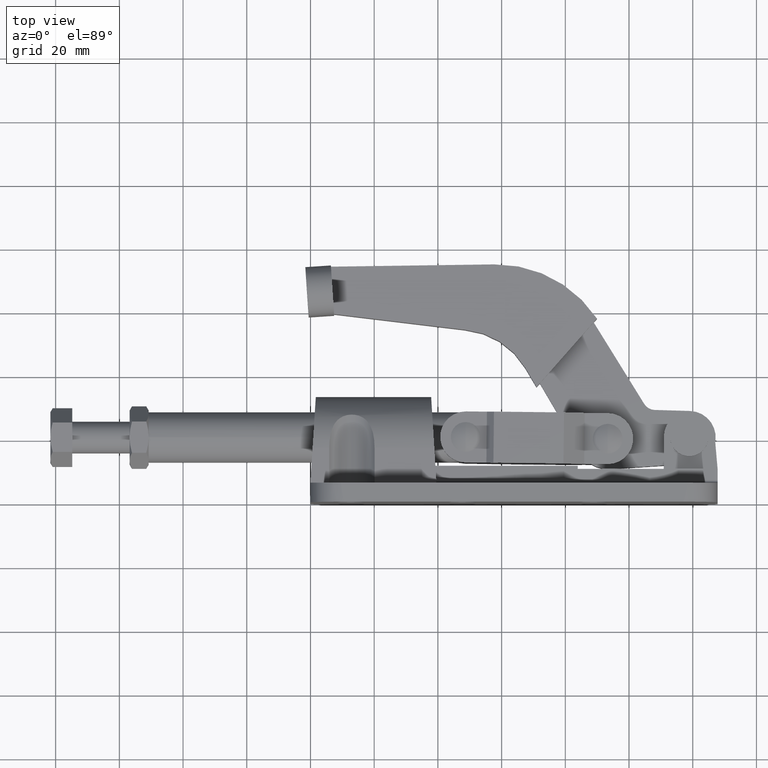
[diagram: clean part render]
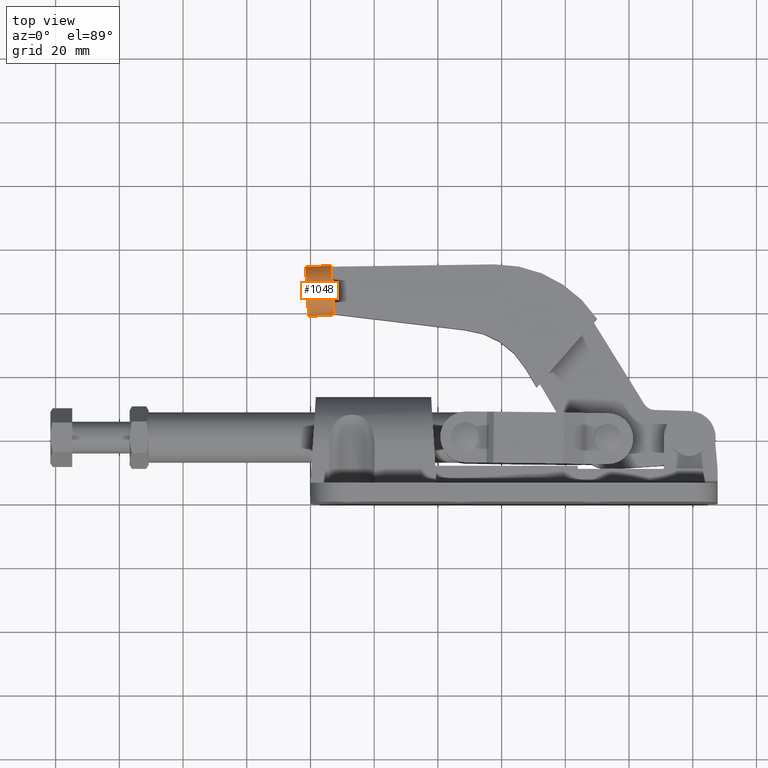
[diagram: same view with one face highlighted and labeled with its STEP entity id]
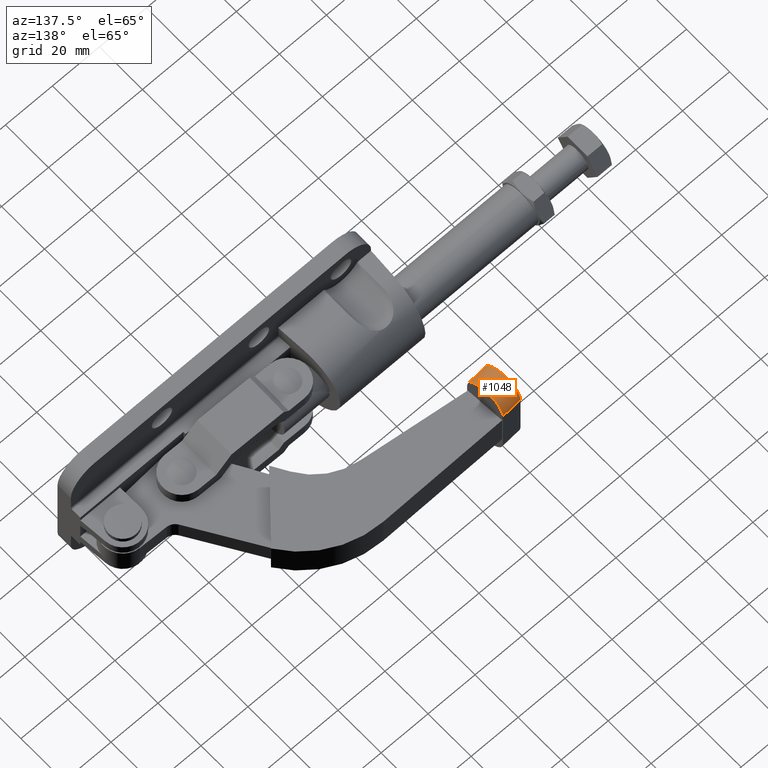
[diagram: same view with one face highlighted and labeled with its STEP entity id]
A machine part, top view. The second image highlights one B-rep face of the part: STEP entity #1048.
A second angle (auxiliary view) of the same face is appended — the face is thin or edge-on in the first view.
In plain terms, the highlighted face is a freeform B-spline surface patch.
Its self-contained STEP definition (entity closure, byte-faithful):
#162 = ORIENTED_EDGE ( 'NONE', *, *, #4937, .T. ) ;
#315 = VERTEX_POINT ( 'NONE', #653 ) ;
#358 = CARTESIAN_POINT ( 'NONE',  ( 7.425464206255657700, 58.99468908533487600, 10.22447901255426600 ) ) ;
#502 = CARTESIAN_POINT ( 'NONE',  ( -1.442688141194595100, 71.77842185881044700, 15.94816563444231200 ) ) ;
#558 = CARTESIAN_POINT ( 'NONE',  ( -0.5838739777306173300, 58.86923935050506900, 13.26859659949975900 ) ) ;
#603 = VECTOR ( 'NONE', #1136, 1000.000000000000000 ) ;
#616 = CARTESIAN_POINT ( 'NONE',  ( 7.425464206255657700, 58.99468908533487600, 10.22447901255426600 ) ) ;
#653 = CARTESIAN_POINT ( 'NONE',  ( 6.396547981574171300, 74.46074436858246800, 10.32662863986430500 ) ) ;
#655 = CARTESIAN_POINT ( 'NONE',  ( 7.425464206255657700, 58.99468908533487600, 10.22447901255426600 ) ) ;
#900 = CARTESIAN_POINT ( 'NONE',  ( -1.269834298771685500, 69.18018594931059800, 17.63992341549715100 ) ) ;
#963 = VERTEX_POINT ( 'NONE', #4226 ) ;
#1048 = ADVANCED_FACE ( 'NONE', ( #2458 ), #5044, .T. ) ;
#1136 = DIRECTION ( 'NONE',  ( -0.9977943721879429800, -0.06638065102173085200, -1.982644829445289500E-017 ) ) ;
#1254 = CARTESIAN_POINT ( 'NONE',  ( -0.8673869506403870700, 63.13083733813309800, 17.56200779297675800 ) ) ;
#1380 = CARTESIAN_POINT ( 'NONE',  ( 7.398480999772943700, 59.40028455867891200, 13.26859659949975900 ) ) ;
#1424 = CARTESIAN_POINT ( 'NONE',  ( -1.269834298771675100, 69.18018594931059800, 17.63992341549715100 ) ) ;
#1667 = CARTESIAN_POINT ( 'NONE',  ( 6.396558950179306500, 74.46057949504918800, 11.33621663687624300 ) ) ;
#1847 = CARTESIAN_POINT ( 'NONE',  ( 7.425453267660476100, 58.99485350777657500, 11.23134427117879700 ) ) ;
#1921 = CARTESIAN_POINT ( 'NONE',  ( 7.114968026863163400, 63.66188254630694800, 17.56200779297675800 ) ) ;
#1971 = CARTESIAN_POINT ( 'NONE',  ( 7.284548835792478800, 61.11284492500732300, 15.83309838733576100 ) ) ;
#2005 = CARTESIAN_POINT ( 'NONE',  ( -0.6978061417110825700, 60.58179971683347300, 15.83309838733576100 ) ) ;
#2021 = CARTESIAN_POINT ( 'NONE',  ( -0.5568907712479032000, 58.46364387716102600, 10.22447901255426600 ) ) ;
#2126 = EDGE_CURVE ( 'NONE', #2898, #6085, #6538, .T. ) ;
#2173 = CARTESIAN_POINT ( 'NONE',  ( 6.712520678731875600, 69.71123115748443400, 17.63992341549715100 ) ) ;
#2250 = EDGE_CURVE ( 'NONE', #6085, #963, #6506, .T. ) ;
#2448 = CARTESIAN_POINT ( 'NONE',  ( 6.712520678731875600, 69.71123115748443400, 17.63992341549715100 ) ) ;
#2458 = FACE_OUTER_BOUND ( 'NONE', #4319, .T. ) ;
#2686 = CARTESIAN_POINT ( 'NONE',  ( 6.396547981574171300, 74.46074436858246800, 10.32662863986430500 ) ) ;
#2819 = CARTESIAN_POINT ( 'NONE',  ( -1.558745752598279100, 73.52293068368270200, 13.37803409431769600 ) ) ;
#2898 = VERTEX_POINT ( 'NONE', #4793 ) ;
#2943 = CARTESIAN_POINT ( 'NONE',  ( -0.5838739777306069000, 58.86923935050506900, 13.26859659949975900 ) ) ;
#2963 = CARTESIAN_POINT ( 'NONE',  ( 6.423609224905272100, 74.05397589185655200, 13.37803409431769600 ) ) ;
#3199 = CARTESIAN_POINT ( 'NONE',  ( -1.067843451908568400, 66.14397995959369300, 18.19854801070423300 ) ) ;
#3360 = CARTESIAN_POINT ( 'NONE',  ( -0.5569017098430751900, 58.46380829960273200, 11.23134427117879700 ) ) ;
#3402 = ORIENTED_EDGE ( 'NONE', *, *, #2250, .F. ) ;
#3409 = CARTESIAN_POINT ( 'NONE',  ( -0.5568907712479032000, 58.46364387716102600, 10.22447901255426600 ) ) ;
#3480 = CARTESIAN_POINT ( 'NONE',  ( 6.396547981574171300, 74.46074436858246800, 10.32662863986430500 ) ) ;
#3822 = CARTESIAN_POINT ( 'NONE',  ( 7.398480999772943700, 59.40028455867891200, 13.26859659949975900 ) ) ;
#3840 = CARTESIAN_POINT ( 'NONE',  ( 6.423609224905272100, 74.05397589185655200, 13.37803409431769600 ) ) ;
#3874 = B_SPLINE_CURVE_WITH_KNOTS ( 'NONE', 3,
 ( #655, #4270, #1380, #5025, #1921, #5551, #2448, #6088, #2963, #6631, #3480 ),
 .UNSPECIFIED., .F., .F.,
 ( 4, 1, 1, 1, 1, 1, 1, 1, 4 ),
 ( -6.189906223444883800E-006, 0.1249953540867011200, 0.2499968980796256900, 0.3749984420725502900, 0.4999999860654748600, 0.6250015300583994200, 0.7500030740513240500, 0.8750046180442485600, 1.000006162037173200 ),
 .UNSPECIFIED. ) ;
#3910 = CARTESIAN_POINT ( 'NONE',  ( -0.5569017098430856200, 58.46380829960273200, 11.23134427117879700 ) ) ;
#4010 = CARTESIAN_POINT ( 'NONE',  ( 6.539666836308965600, 72.30946706698429700, 15.94816563444231200 ) ) ;
#4226 = CARTESIAN_POINT ( 'NONE',  ( -1.585806995929389700, 73.92969916040861700, 10.32662863986430500 ) ) ;
#4270 = CARTESIAN_POINT ( 'NONE',  ( 7.425453267660476100, 58.99485350777657500, 11.23134427117879700 ) ) ;
#4319 = EDGE_LOOP ( 'NONE', ( #162, #3402, #5078, #6544 ) ) ;
#4355 = CARTESIAN_POINT ( 'NONE',  ( -1.442688141194584900, 71.77842185881044700, 15.94816563444231200 ) ) ;
#4467 = CARTESIAN_POINT ( 'NONE',  ( -0.8673869506403975000, 63.13083733813309800, 17.56200779297675800 ) ) ;
#4745 = LINE ( 'NONE', #6399, #603 ) ;
#4779 = VECTOR ( 'NONE', #5347, 1000.000000000000000 ) ;
#4793 = CARTESIAN_POINT ( 'NONE',  ( 7.425464206255657700, 58.99468908533487600, 10.22447901255426600 ) ) ;
#4937 = EDGE_CURVE ( 'NONE', #315, #963, #4745, .T. ) ;
#4940 = CARTESIAN_POINT ( 'NONE',  ( -0.6978061417110721400, 60.58179971683347300, 15.83309838733576100 ) ) ;
#4947 = EDGE_CURVE ( 'NONE', #2898, #315, #3874, .T. ) ;
#4971 = CARTESIAN_POINT ( 'NONE',  ( -1.558745752598289500, 73.52293068368270200, 13.37803409431769600 ) ) ;
#5025 = CARTESIAN_POINT ( 'NONE',  ( 7.284548835792478800, 61.11284492500732300, 15.83309838733576100 ) ) ;
#5044 = B_SPLINE_SURFACE_WITH_KNOTS ( 'NONE', 3, 1, ( 
 ( #358, #6192 ),
 ( #1847, #3360 ),
 ( #3822, #2943 ),
 ( #1971, #4940 ),
 ( #6522, #1254 ),
 ( #5805, #3199 ),
 ( #2173, #1424 ),
 ( #4010, #4355 ),
 ( #3840, #2819 ),
 ( #1667, #6300 ),
 ( #2686, #5294 ) ),
 .UNSPECIFIED., .F., .F., .F.,
 ( 4, 1, 1, 1, 1, 1, 1, 1, 4 ),
 ( 2, 2 ),
 ( -6.189906223444883800E-006, 0.1249953540867011400, 0.2499968980796257200, 0.3749984420725502900, 0.4999999860654748600, 0.6250015300583994200, 0.7500030740513240500, 0.8750046180442485600, 1.000006162037173200 ),
 ( 0.0000000000000000000, 1.000000000000000000 ),
 .UNSPECIFIED. ) ;
#5078 = ORIENTED_EDGE ( 'NONE', *, *, #2126, .F. ) ;
#5105 = CARTESIAN_POINT ( 'NONE',  ( -1.585796027324254400, 73.92953428687535200, 11.33621663687624300 ) ) ;
#5294 = CARTESIAN_POINT ( 'NONE',  ( -1.585806995929379200, 73.92969916040861700, 10.32662863986430500 ) ) ;
#5347 = DIRECTION ( 'NONE',  ( -0.9977943721879429800, -0.06638065102173085200, -1.982644829445289500E-017 ) ) ;
#5494 = CARTESIAN_POINT ( 'NONE',  ( -1.067843451908578900, 66.14397995959369300, 18.19854801070423300 ) ) ;
#5551 = CARTESIAN_POINT ( 'NONE',  ( 6.914511525594982700, 66.67502516776752900, 18.19854801070423300 ) ) ;
#5805 = CARTESIAN_POINT ( 'NONE',  ( 6.914511525594982700, 66.67502516776752900, 18.19854801070423300 ) ) ;
#6085 = VERTEX_POINT ( 'NONE', #3409 ) ;
#6088 = CARTESIAN_POINT ( 'NONE',  ( 6.539666836308965600, 72.30946706698429700, 15.94816563444231200 ) ) ;
#6192 = CARTESIAN_POINT ( 'NONE',  ( -0.5568907712478927700, 58.46364387716102600, 10.22447901255426600 ) ) ;
#6300 = CARTESIAN_POINT ( 'NONE',  ( -1.585796027324244000, 73.92953428687535200, 11.33621663687624300 ) ) ;
#6399 = CARTESIAN_POINT ( 'NONE',  ( 6.396547981574171300, 74.46074436858246800, 10.32662863986430500 ) ) ;
#6405 = CARTESIAN_POINT ( 'NONE',  ( -1.585806995929389700, 73.92969916040861700, 10.32662863986430500 ) ) ;
#6506 = B_SPLINE_CURVE_WITH_KNOTS ( 'NONE', 3,
 ( #2021, #3910, #558, #2005, #4467, #5494, #900, #502, #4971, #5105, #6405 ),
 .UNSPECIFIED., .F., .F.,
 ( 4, 1, 1, 1, 1, 1, 1, 1, 4 ),
 ( -6.189906223444883800E-006, 0.1249953540867011200, 0.2499968980796256900, 0.3749984420725502900, 0.4999999860654748600, 0.6250015300583994200, 0.7500030740513240500, 0.8750046180442485600, 1.000006162037173200 ),
 .UNSPECIFIED. ) ;
#6522 = CARTESIAN_POINT ( 'NONE',  ( 7.114968026863163400, 63.66188254630694800, 17.56200779297675800 ) ) ;
#6538 = LINE ( 'NONE', #616, #4779 ) ;
#6544 = ORIENTED_EDGE ( 'NONE', *, *, #4947, .T. ) ;
#6631 = CARTESIAN_POINT ( 'NONE',  ( 6.396558950179306500, 74.46057949504918800, 11.33621663687624300 ) ) ;